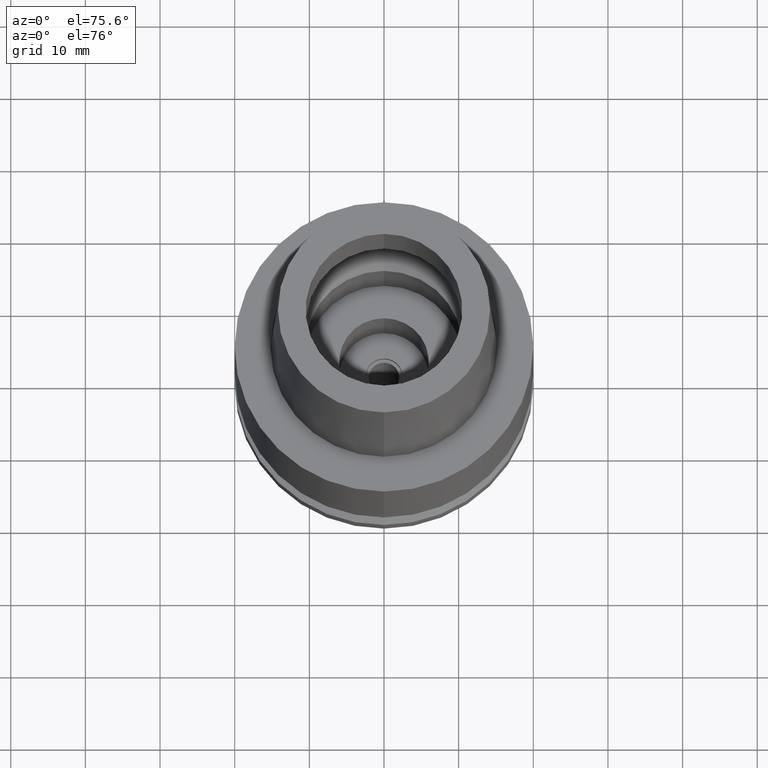
[diagram: clean part render]
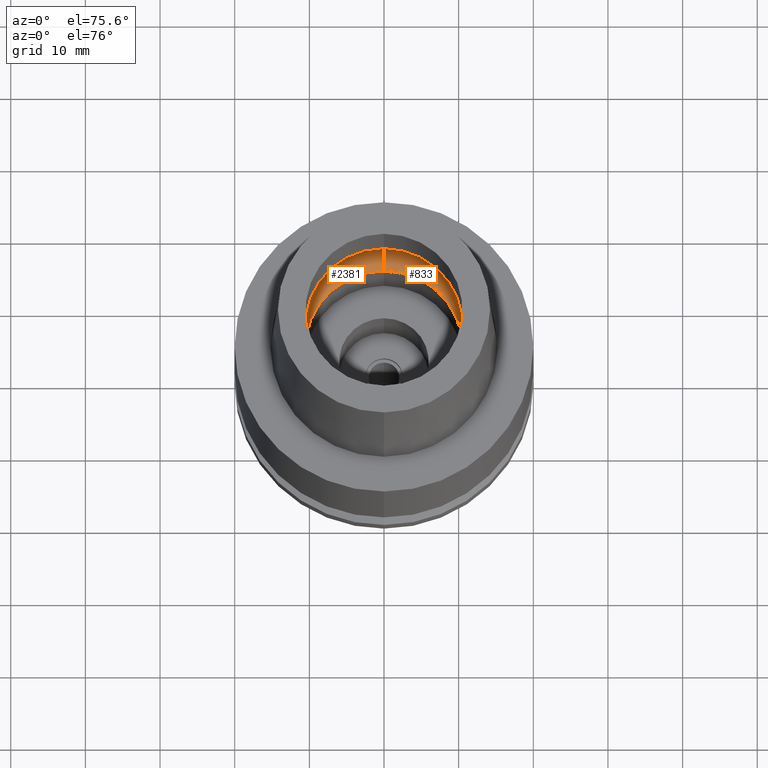
[diagram: same view with one multi-face feature highlighted, each face labeled with its STEP entity id]
A machine part, auxiliary view. The highlighted faces form ONE feature: a constant-radius fillet chain: 2 tangent blend faces with common blend radius 5 mm. The faces share edges in the B-rep.
Their STEP definitions:
[1] entity #833 (Torus):
#125 = DIRECTION ( 'NONE',  ( 0.0000000000000000000, 1.000000000000000000, 0.0000000000000000000 ) ) ;
#177 = EDGE_LOOP ( 'NONE', ( #1774, #1499, #978, #345 ) ) ;
#228 = CARTESIAN_POINT ( 'NONE',  ( 0.0000000000000000000, 0.0000000000000000000, 0.05017672787749000163 ) ) ;
#237 = AXIS2_PLACEMENT_3D ( 'NONE', #595, #435, #2301 ) ;
#345 = ORIENTED_EDGE ( 'NONE', *, *, #1239, .F. ) ;
#349 = CARTESIAN_POINT ( 'NONE',  ( 0.0000000000000000000, 0.0000000000000000000, 4.225999999999999979 ) ) ;
#392 = CARTESIAN_POINT ( 'NONE',  ( 0.0000000000000000000, 10.50000000000000000, 0.05017672787752999741 ) ) ;
#419 = CARTESIAN_POINT ( 'NONE',  ( 0.0000000000000000000, -12.75000000000000000, 4.225999999999999979 ) ) ;
#435 = DIRECTION ( 'NONE',  ( -1.000000000000000000, 0.0000000000000000000, 0.0000000000000000000 ) ) ;
#453 = DIRECTION ( 'NONE',  ( 0.0000000000000000000, -1.000000000000000000, 0.0000000000000000000 ) ) ;
#503 = DIRECTION ( 'NONE',  ( 0.0000000000000000000, 0.0000000000000000000, 1.000000000000000000 ) ) ;
#563 = CARTESIAN_POINT ( 'NONE',  ( 0.0000000000000000000, -10.50000000000000000, 0.05017672787749000163 ) ) ;
#595 = CARTESIAN_POINT ( 'NONE',  ( 0.0000000000000000000, -7.750000000000000000, 4.225999999999999979 ) ) ;
#750 = TOROIDAL_SURFACE ( 'NONE', #2674, 7.750000000000000000, 5.000000000000000000 ) ;
#763 = AXIS2_PLACEMENT_3D ( 'NONE', #228, #832, #453 ) ;
#832 = DIRECTION ( 'NONE',  ( 0.0000000000000000000, 0.0000000000000000000, 1.000000000000000000 ) ) ;
#833 = ADVANCED_FACE ( 'NONE', ( #1184 ), #750, .F. ) ;
#978 = ORIENTED_EDGE ( 'NONE', *, *, #2424, .F. ) ;
#993 = AXIS2_PLACEMENT_3D ( 'NONE', #1675, #2333, #1294 ) ;
#1009 = DIRECTION ( 'NONE',  ( 0.0000000000000000000, 0.0000000000000000000, -1.000000000000000000 ) ) ;
#1117 = CIRCLE ( 'NONE', #1681, 12.75000000000000000 ) ;
#1184 = FACE_OUTER_BOUND ( 'NONE', #177, .T. ) ;
#1239 = EDGE_CURVE ( 'NONE', #1996, #1783, #1477, .T. ) ;
#1250 = CARTESIAN_POINT ( 'NONE',  ( 0.0000000000000000000, 12.75000000000000000, 4.225999999999999979 ) ) ;
#1294 = DIRECTION ( 'NONE',  ( 0.0000000000000000000, 0.5500000000000007105, -0.8351646544245028281 ) ) ;
#1477 = CIRCLE ( 'NONE', #993, 4.999999999999994671 ) ;
#1499 = ORIENTED_EDGE ( 'NONE', *, *, #2013, .T. ) ;
#1570 = CARTESIAN_POINT ( 'NONE',  ( 0.0000000000000000000, 0.0000000000000000000, 4.225999999999999979 ) ) ;
#1648 = VERTEX_POINT ( 'NONE', #563 ) ;
#1675 = CARTESIAN_POINT ( 'NONE',  ( 0.0000000000000000000, 7.750000000000000000, 4.225999999999999979 ) ) ;
#1681 = AXIS2_PLACEMENT_3D ( 'NONE', #349, #1009, #1843 ) ;
#1774 = ORIENTED_EDGE ( 'NONE', *, *, #1823, .F. ) ;
#1783 = VERTEX_POINT ( 'NONE', #1250 ) ;
#1812 = CIRCLE ( 'NONE', #763, 10.50000000000000000 ) ;
#1823 = EDGE_CURVE ( 'NONE', #1648, #1996, #1812, .T. ) ;
#1843 = DIRECTION ( 'NONE',  ( 0.0000000000000000000, 1.000000000000000000, 0.0000000000000000000 ) ) ;
#1996 = VERTEX_POINT ( 'NONE', #392 ) ;
#2013 = EDGE_CURVE ( 'NONE', #1648, #2658, #2040, .T. ) ;
#2040 = CIRCLE ( 'NONE', #237, 4.999999999999994671 ) ;
#2301 = DIRECTION ( 'NONE',  ( 0.0000000000000000000, -0.5500000000000007105, -0.8351646544245028281 ) ) ;
#2333 = DIRECTION ( 'NONE',  ( 1.000000000000000000, 0.0000000000000000000, 0.0000000000000000000 ) ) ;
#2424 = EDGE_CURVE ( 'NONE', #1783, #2658, #1117, .T. ) ;
#2658 = VERTEX_POINT ( 'NONE', #419 ) ;
#2674 = AXIS2_PLACEMENT_3D ( 'NONE', #1570, #503, #125 ) ;
[2] entity #2381 (Torus):
#40 = DIRECTION ( 'NONE',  ( 0.0000000000000000000, 0.0000000000000000000, 1.000000000000000000 ) ) ;
#82 = ORIENTED_EDGE ( 'NONE', *, *, #2013, .F. ) ;
#225 = CIRCLE ( 'NONE', #1846, 12.75000000000000000 ) ;
#237 = AXIS2_PLACEMENT_3D ( 'NONE', #595, #435, #2301 ) ;
#377 = DIRECTION ( 'NONE',  ( 0.0000000000000000000, 0.0000000000000000000, 1.000000000000000000 ) ) ;
#392 = CARTESIAN_POINT ( 'NONE',  ( 0.0000000000000000000, 10.50000000000000000, 0.05017672787752999741 ) ) ;
#419 = CARTESIAN_POINT ( 'NONE',  ( 0.0000000000000000000, -12.75000000000000000, 4.225999999999999979 ) ) ;
#435 = DIRECTION ( 'NONE',  ( -1.000000000000000000, 0.0000000000000000000, 0.0000000000000000000 ) ) ;
#563 = CARTESIAN_POINT ( 'NONE',  ( 0.0000000000000000000, -10.50000000000000000, 0.05017672787749000163 ) ) ;
#595 = CARTESIAN_POINT ( 'NONE',  ( 0.0000000000000000000, -7.750000000000000000, 4.225999999999999979 ) ) ;
#732 = DIRECTION ( 'NONE',  ( 0.0000000000000000000, -1.000000000000000000, 0.0000000000000000000 ) ) ;
#762 = CIRCLE ( 'NONE', #944, 10.50000000000000000 ) ;
#852 = EDGE_CURVE ( 'NONE', #2658, #1783, #225, .T. ) ;
#867 = ORIENTED_EDGE ( 'NONE', *, *, #1239, .T. ) ;
#944 = AXIS2_PLACEMENT_3D ( 'NONE', #1899, #40, #2340 ) ;
#983 = TOROIDAL_SURFACE ( 'NONE', #2552, 7.750000000000000000, 5.000000000000000000 ) ;
#993 = AXIS2_PLACEMENT_3D ( 'NONE', #1675, #2333, #1294 ) ;
#1239 = EDGE_CURVE ( 'NONE', #1996, #1783, #1477, .T. ) ;
#1242 = ORIENTED_EDGE ( 'NONE', *, *, #852, .F. ) ;
#1250 = CARTESIAN_POINT ( 'NONE',  ( 0.0000000000000000000, 12.75000000000000000, 4.225999999999999979 ) ) ;
#1294 = DIRECTION ( 'NONE',  ( 0.0000000000000000000, 0.5500000000000007105, -0.8351646544245028281 ) ) ;
#1360 = CARTESIAN_POINT ( 'NONE',  ( 0.0000000000000000000, 0.0000000000000000000, 4.225999999999999979 ) ) ;
#1477 = CIRCLE ( 'NONE', #993, 4.999999999999994671 ) ;
#1648 = VERTEX_POINT ( 'NONE', #563 ) ;
#1675 = CARTESIAN_POINT ( 'NONE',  ( 0.0000000000000000000, 7.750000000000000000, 4.225999999999999979 ) ) ;
#1783 = VERTEX_POINT ( 'NONE', #1250 ) ;
#1826 = ORIENTED_EDGE ( 'NONE', *, *, #2604, .F. ) ;
#1846 = AXIS2_PLACEMENT_3D ( 'NONE', #1360, #2182, #732 ) ;
#1899 = CARTESIAN_POINT ( 'NONE',  ( 0.0000000000000000000, 0.0000000000000000000, 0.05017672787749000163 ) ) ;
#1996 = VERTEX_POINT ( 'NONE', #392 ) ;
#2013 = EDGE_CURVE ( 'NONE', #1648, #2658, #2040, .T. ) ;
#2026 = DIRECTION ( 'NONE',  ( 0.0000000000000000000, 1.000000000000000000, 0.0000000000000000000 ) ) ;
#2040 = CIRCLE ( 'NONE', #237, 4.999999999999994671 ) ;
#2182 = DIRECTION ( 'NONE',  ( 0.0000000000000000000, 0.0000000000000000000, -1.000000000000000000 ) ) ;
#2281 = EDGE_LOOP ( 'NONE', ( #1242, #82, #1826, #867 ) ) ;
#2301 = DIRECTION ( 'NONE',  ( 0.0000000000000000000, -0.5500000000000007105, -0.8351646544245028281 ) ) ;
#2333 = DIRECTION ( 'NONE',  ( 1.000000000000000000, 0.0000000000000000000, 0.0000000000000000000 ) ) ;
#2340 = DIRECTION ( 'NONE',  ( 0.0000000000000000000, 1.000000000000000000, 0.0000000000000000000 ) ) ;
#2381 = ADVANCED_FACE ( 'NONE', ( #2660 ), #983, .F. ) ;
#2552 = AXIS2_PLACEMENT_3D ( 'NONE', #2675, #377, #2026 ) ;
#2604 = EDGE_CURVE ( 'NONE', #1996, #1648, #762, .T. ) ;
#2658 = VERTEX_POINT ( 'NONE', #419 ) ;
#2660 = FACE_OUTER_BOUND ( 'NONE', #2281, .T. ) ;
#2675 = CARTESIAN_POINT ( 'NONE',  ( 0.0000000000000000000, 0.0000000000000000000, 4.225999999999999979 ) ) ;